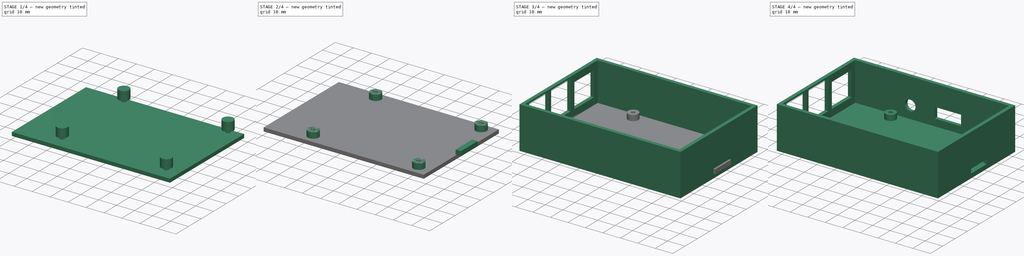
[diagram: build sequence overview — one tinted view per stage of 4, left to right]
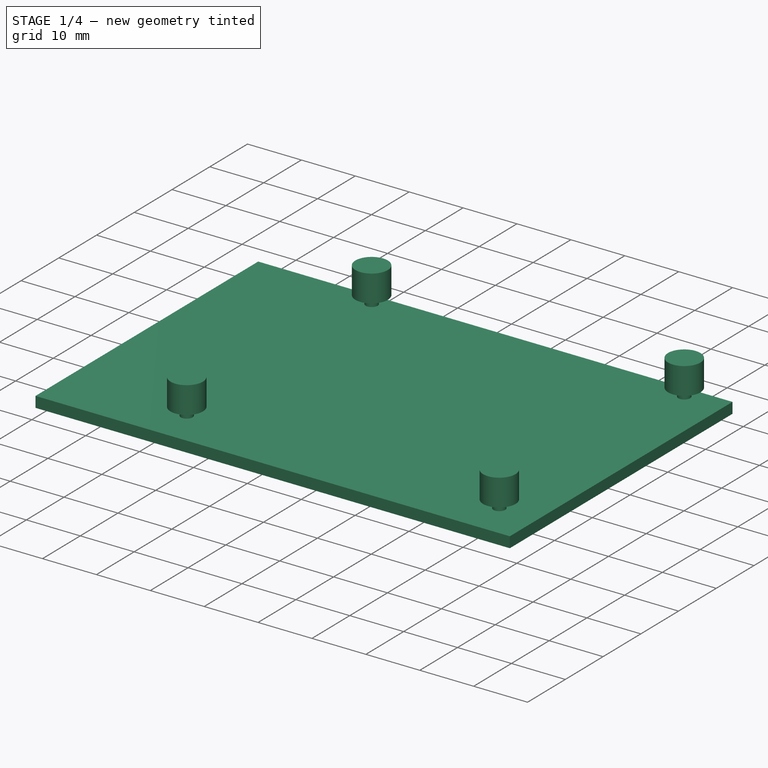
[diagram: stage 1 of 4 — iso view after this stage's code; geometry added in this stage tinted green]
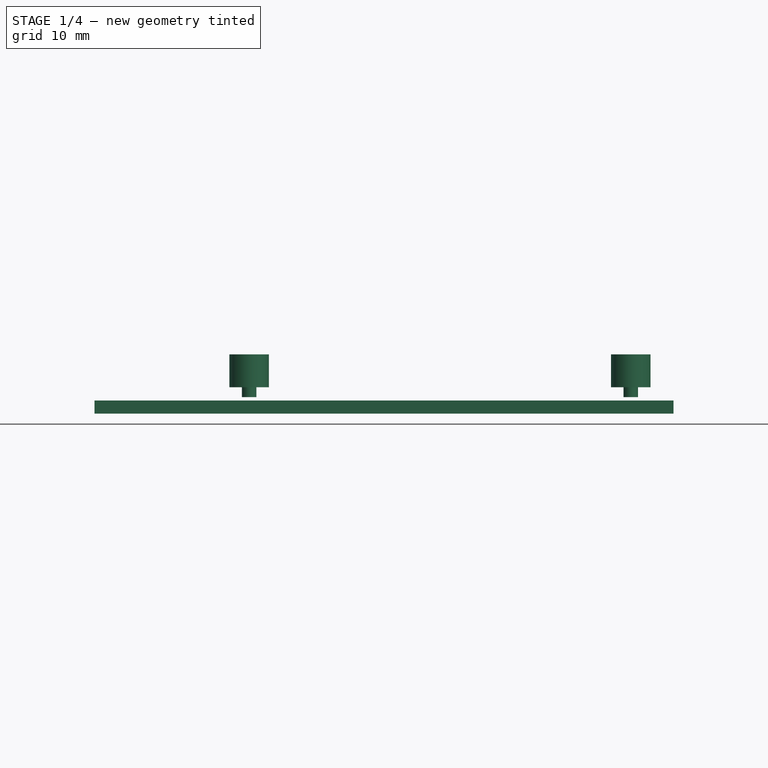
[diagram: stage 1 of 4 — front view after this stage's code; geometry added in this stage tinted green]
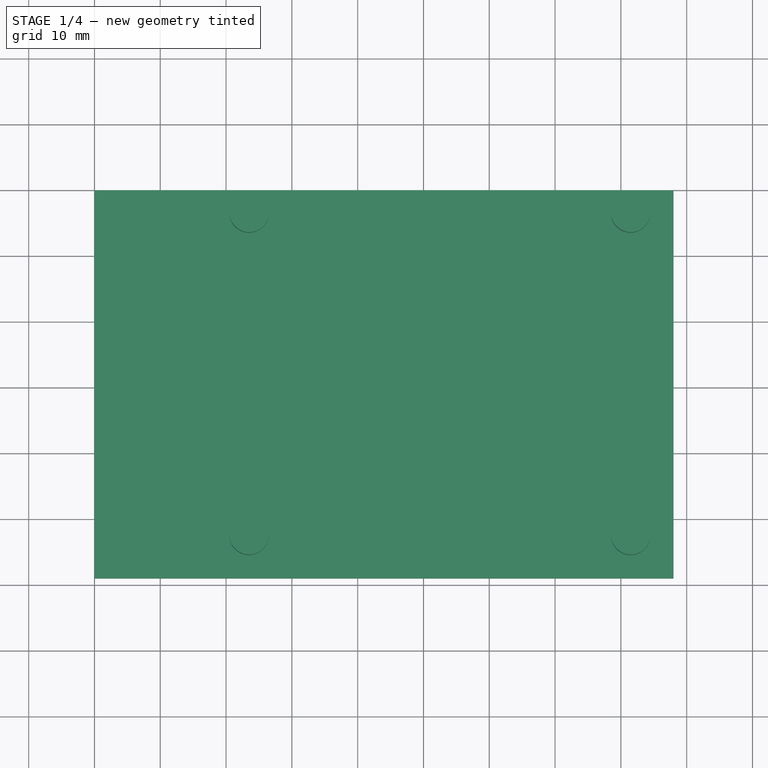
[diagram: stage 1 of 4 — top view after this stage's code; geometry added in this stage tinted green]
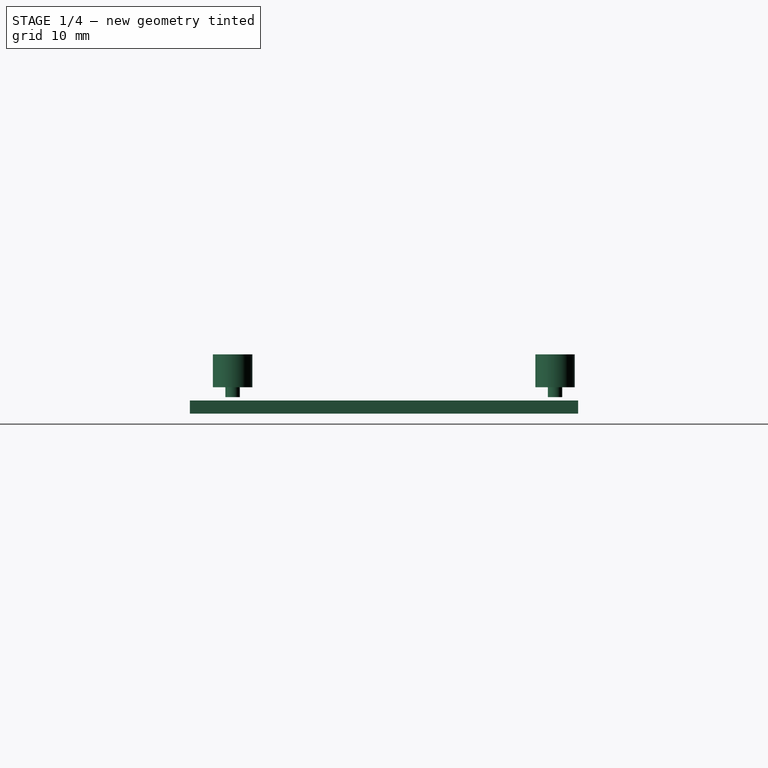
[diagram: stage 1 of 4 — right view after this stage's code; geometry added in this stage tinted green]
FCSTD DOCUMENT  (FreeCAD 0.15R4671 (Git))
Label: test02
License: All rights reserved
LicenseURL: http://en.wikipedia.org/wiki/All_rights_reserved
objects: Sketcher::SketchObject×7, PartDesign::Pad×7, Part::Cut×4, Part::MultiFuse×2
note: 27 computed .brp shape members not serialized (recipe doc carries the construction recipe); baked Part::Feature solids carry a one-line shape summary decoded from their .brp

FEATURE [Sketcher::SketchObject] Sketch  label="Raspberry Inner Holes"
  Placement = pos=(0,0,2.5) rot=(0,0,1;0rad)
  sketch-geometry (4):
    g0: Circle CenterX=23.5 CenterY=-3.5 CenterZ=0 NormalX=0 NormalY=0 NormalZ=1 Radius=1.1
    g1: Circle CenterX=23.5 CenterY=-52.5 CenterZ=0 NormalX=0 NormalY=0 NormalZ=1 Radius=1.1
    g2: Circle CenterX=81.5 CenterY=-3.5 CenterZ=0 NormalX=0 NormalY=0 NormalZ=1 Radius=1.1
    g3: Circle CenterX=81.5 CenterY=-52.5 CenterZ=0 NormalX=0 NormalY=0 NormalZ=1 Radius=1.1
  constraints (12):
    c: DistanceX(g0,g2) = 58
    c: DistanceY(g2,g0) = 0
    c: DistanceX(g0,g1) = 0
    c: DistanceX(g3,g2) = 0
    c: DistanceY(g3,g1) = 0
    c: Equal(g3,g2)
    c: Radius(g0) = 1.1
    c: Equal(g0,g2)
    c: Equal(g0,g1)
    c: DistanceY(g-1,g0) = -3.5
    c: DistanceY(g2,g3) = -49
    c: DistanceX(g-1,g0) = 23.5
FEATURE [PartDesign::Pad] Pad
  Length = 6.5
  Length2 = 100
  Placement = pos=(0,0,2.5) rot=(0,0,1;0rad)
  Sketch = -> Sketch
  Type = 0
FEATURE [Sketcher::SketchObject] Sketch001  label="Raspberry Outer Holes"
  Placement = pos=(0,0,4) rot=(0,0,1;0rad)
  sketch-geometry (4):
    g0: Circle CenterX=23.5 CenterY=-3.5 CenterZ=0 NormalX=0 NormalY=0 NormalZ=1 Radius=3
    g1: Circle CenterX=81.5 CenterY=-3.5 CenterZ=0 NormalX=0 NormalY=0 NormalZ=1 Radius=3
    g2: Circle CenterX=81.5 CenterY=-52.5 CenterZ=0 NormalX=0 NormalY=0 NormalZ=1 Radius=3
    g3: Circle CenterX=23.5 CenterY=-52.5 CenterZ=0 NormalX=0 NormalY=0 NormalZ=1 Radius=3
  constraints (12):
    c: DistanceX(g0,g1) = 58
    c: DistanceY(g0,g3) = -49
    c: DistanceY(g0,g1) = 0
    c: DistanceY(g3,g2) = 0
    c: DistanceX(g1,g2) = 0
    c: DistanceX(g0,g3) = 0
    c: Radius(g0) = 3
    c: Equal(g0,g3)
    c: Equal(g0,g2)
    c: Equal(g0,g1)
    c: DistanceX(g0) = 23.5
    c: DistanceY(g-1,g0) = -3.5
FEATURE [PartDesign::Pad] Pad001
  Length = 5
  Length2 = 100
  Placement = pos=(0,0,4) rot=(0,0,1;0rad)
  Sketch = -> Sketch001
  Type = 0
FEATURE [Sketcher::SketchObject] Sketch002
  sketch-geometry (4):
    g0: LineSegment StartX=0 StartY=0 StartZ=0 EndX=88 EndY=0 EndZ=0
    g1: LineSegment StartX=88 StartY=0 StartZ=0 EndX=88 EndY=-59 EndZ=0
    g2: LineSegment StartX=88 StartY=-59 StartZ=0 EndX=0 EndY=-59 EndZ=0
    g3: LineSegment StartX=0 StartY=-59 StartZ=0 EndX=0 EndY=0 EndZ=0
  constraints (11):
    c: Coincident(g0,g1)
    c: Coincident(g1,g2)
    c: Coincident(g2,g3)
    c: Coincident(g3,g0)
    c: Horizontal(g0)
    c: Horizontal(g2)
    c: Vertical(g1)
    c: Vertical(g3)
    c: Coincident(g0,g-1)
    c: Distance(g0) = 88
    c: Distance(g1) = 59
FEATURE [PartDesign::Pad] Pad002  label="Base"
  Length = 2
  Length2 = 100
  Sketch = -> Sketch002
  Type = 0
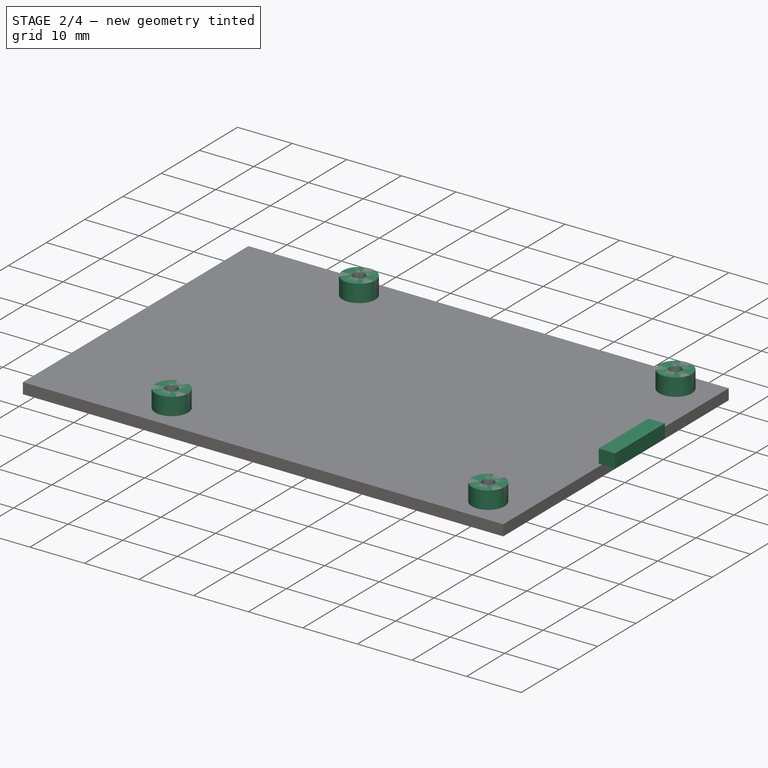
[diagram: stage 2 of 4 — iso view after this stage's code; geometry added in this stage tinted green]
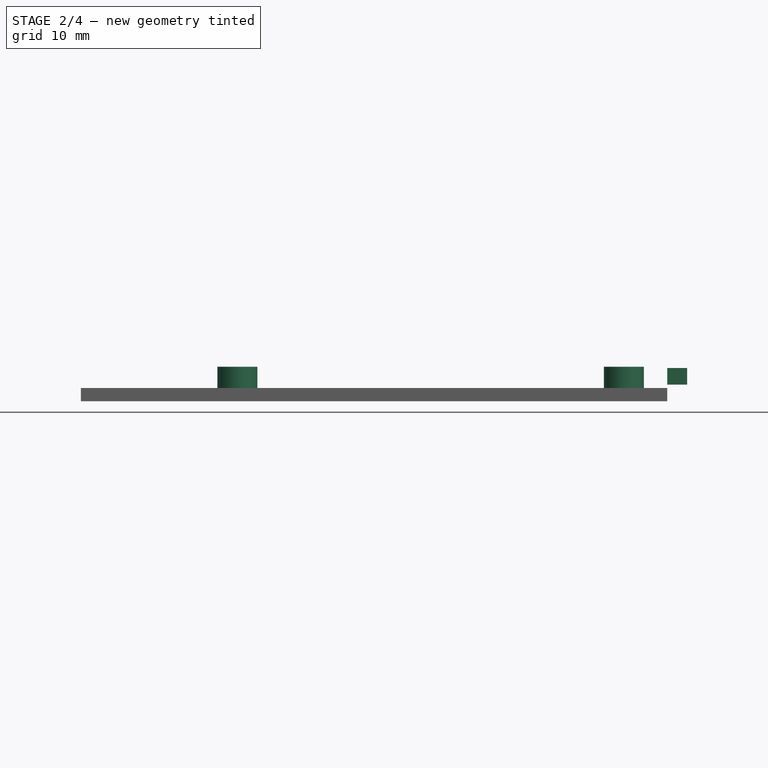
[diagram: stage 2 of 4 — front view after this stage's code; geometry added in this stage tinted green]
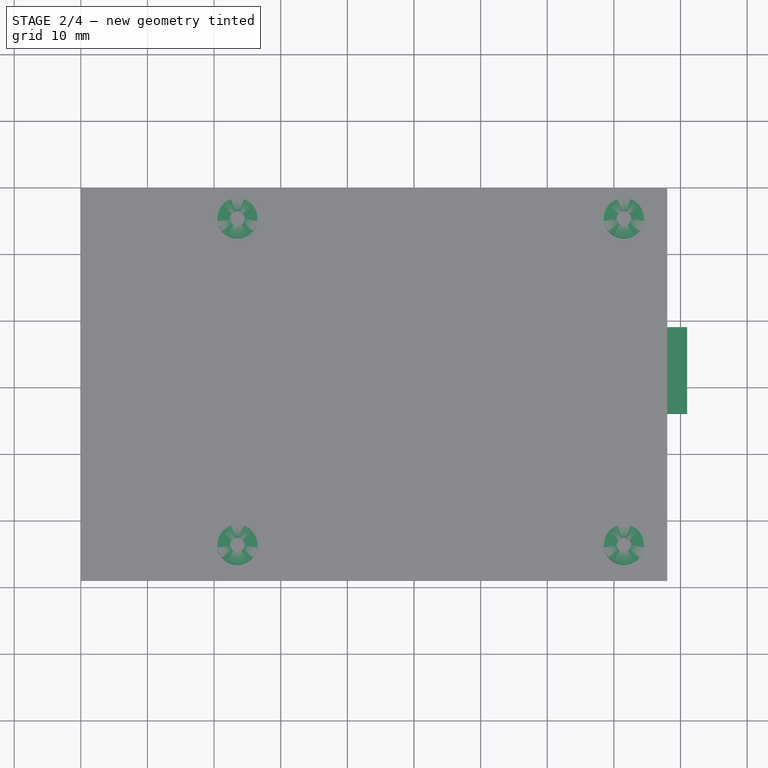
[diagram: stage 2 of 4 — top view after this stage's code; geometry added in this stage tinted green]
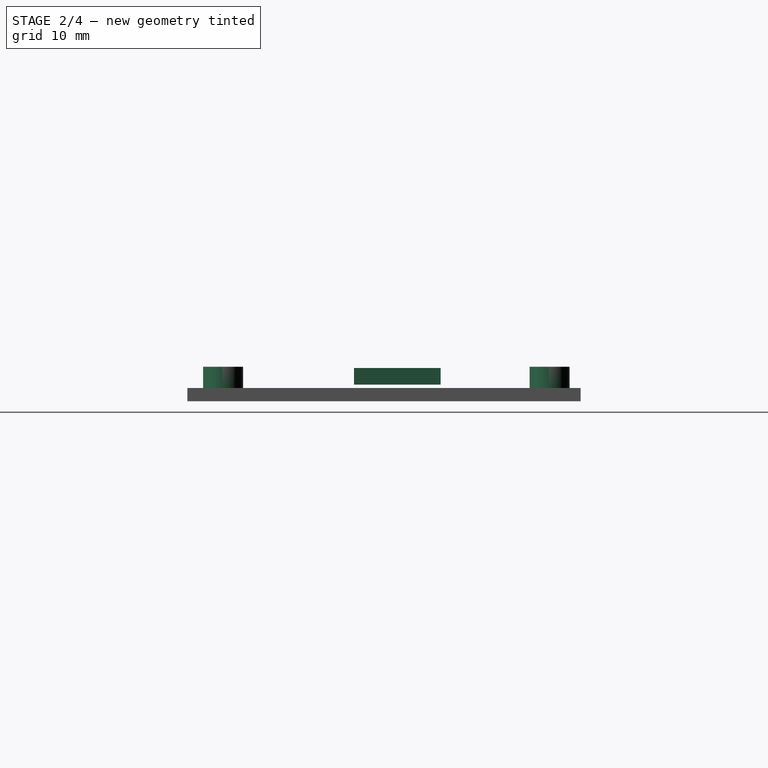
[diagram: stage 2 of 4 — right view after this stage's code; geometry added in this stage tinted green]
FEATURE [Part::Cut] Cut  label="Raspberry"
  Base = -> Pad001
  Placement = pos=(0.000477977,-1.1385,-3.80874) rot=(0,0,1;0rad)
  Tool = -> Pad
FEATURE [Sketcher::SketchObject] Sketch006
  Placement = pos=(88,0,0) rot=(0.57735,0.57735,0.57735;2.0944rad)
  sketch-geometry (4):
    g0: LineSegment StartX=-34 StartY=5 StartZ=0 EndX=-21 EndY=5 EndZ=0
    g1: LineSegment StartX=-21 StartY=5 StartZ=0 EndX=-21 EndY=2.5 EndZ=0
    g2: LineSegment StartX=-21 StartY=2.5 StartZ=0 EndX=-34 EndY=2.5 EndZ=0
    g3: LineSegment StartX=-34 StartY=2.5 StartZ=0 EndX=-34 EndY=5 EndZ=0
  constraints (12):
    c: Coincident(g0,g1)
    c: Coincident(g1,g2)
    c: Coincident(g2,g3)
    c: Coincident(g3,g0)
    c: Horizontal(g0)
    c: Horizontal(g2)
    c: Vertical(g1)
    c: Vertical(g3)
    c: Distance(g0) = 13
    c: DistanceX(g-1,g1) = -21
    c: DistanceY(g-1,g1) = 2.5
    c: DistanceY(g1) = -2.5
FEATURE [PartDesign::Pad] Pad006
  Length = 3
  Length2 = 100
  Placement = pos=(88,0,0) rot=(0.57735,0.57735,0.57735;2.0944rad)
  Sketch = -> Sketch006
  Type = 0
FEATURE [Part::MultiFuse] Fusion
  Shapes = -> [Cut,Pad002]
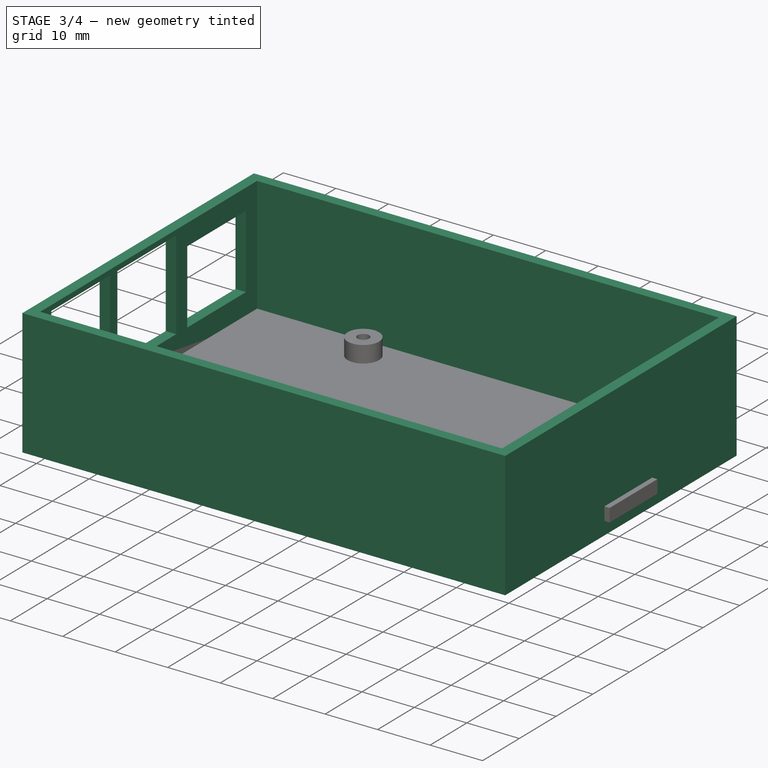
[diagram: stage 3 of 4 — iso view after this stage's code; geometry added in this stage tinted green]
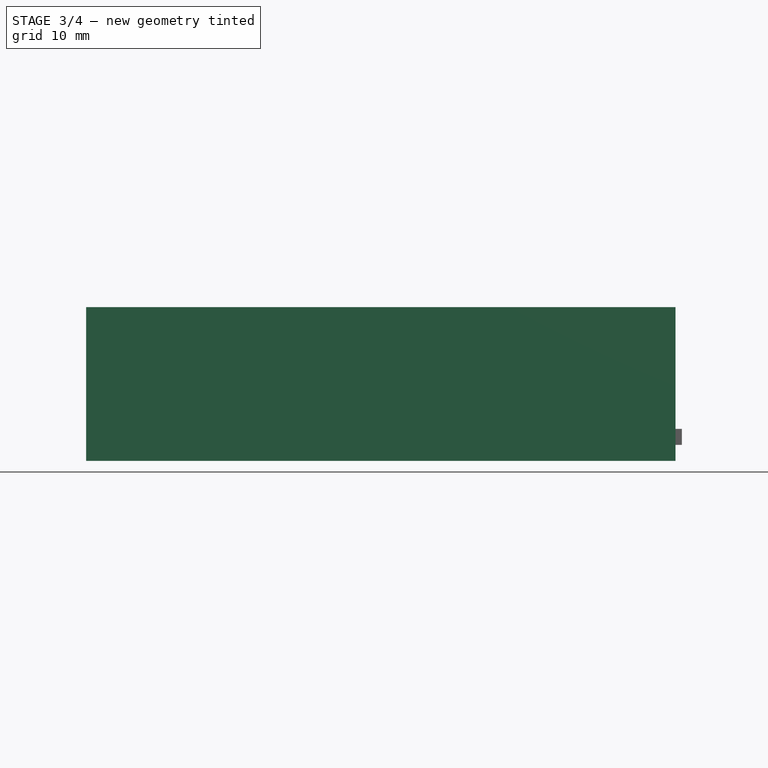
[diagram: stage 3 of 4 — front view after this stage's code; geometry added in this stage tinted green]
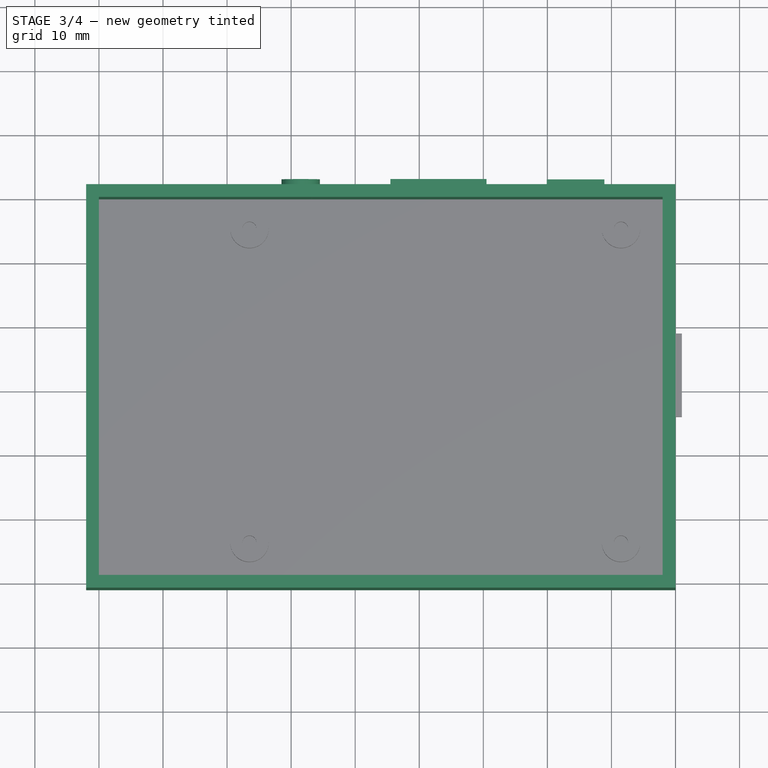
[diagram: stage 3 of 4 — top view after this stage's code; geometry added in this stage tinted green]
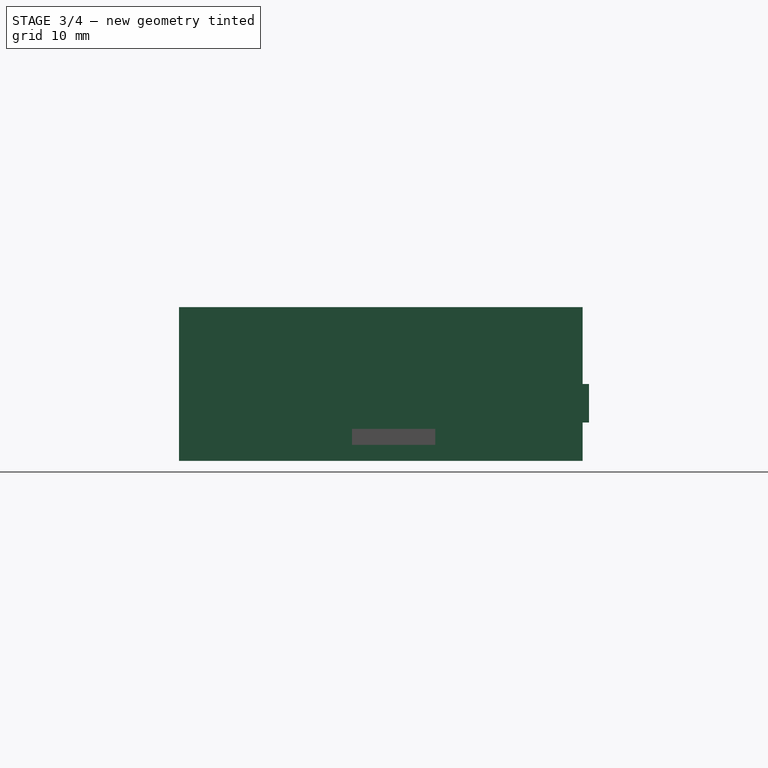
[diagram: stage 3 of 4 — right view after this stage's code; geometry added in this stage tinted green]
FEATURE [Sketcher::SketchObject] Sketch003
  sketch-geometry (8):
    g0: LineSegment StartX=0 StartY=0 StartZ=0 EndX=88 EndY=0 EndZ=0
    g1: LineSegment StartX=88 StartY=0 StartZ=0 EndX=88 EndY=-59 EndZ=0
    g2: LineSegment StartX=88 StartY=-59 StartZ=0 EndX=0 EndY=-59 EndZ=0
    g3: LineSegment StartX=0 StartY=-59 StartZ=0 EndX=0 EndY=0 EndZ=0
    g4: LineSegment StartX=-2 StartY=2 StartZ=0 EndX=90 EndY=2 EndZ=0
    g5: LineSegment StartX=90 StartY=2 StartZ=0 EndX=90 EndY=-61 EndZ=0
    g6: LineSegment StartX=90 StartY=-61 StartZ=0 EndX=-2 EndY=-61 EndZ=0
    g7: LineSegment StartX=-2 StartY=-61 StartZ=0 EndX=-2 EndY=2 EndZ=0
  constraints (23):
    c: Coincident(g0,g1)
    c: Coincident(g1,g2)
    c: Coincident(g2,g3)
    c: Coincident(g3,g0)
    c: Horizontal(g0)
    c: Horizontal(g2)
    c: Vertical(g1)
    c: Vertical(g3)
    c: Coincident(g0,g-1)
    c: Distance(g2) = 88
    c: Distance(g1) = 59
    c: Coincident(g4,g5)
    c: Coincident(g5,g6)
    c: Coincident(g6,g7)
    c: Coincident(g7,g4)
    c: Horizontal(g4)
    c: Horizontal(g6)
    c: Vertical(g5)
    c: Vertical(g7)
    c: DistanceX(g-1,g4) = -2
    c: DistanceY(g4,g0) = -2
    c: DistanceX(g5,g1) = -2
    c: DistanceY(g6,g2) = 2
FEATURE [PartDesign::Pad] Pad003  label="Paredes"
  Length = 24
  Length2 = 100
  Sketch = -> Sketch003
  Type = 0
FEATURE [Sketcher::SketchObject] Sketch004
  Placement = pos=(0,0,0) rot=(-0.57735,0.57735,0.57735;4.18879rad)
  sketch-geometry (12):
    g0: LineSegment StartX=3 StartY=20 StartZ=0 EndX=19 EndY=20 EndZ=0
    g1: LineSegment StartX=19 StartY=20 StartZ=0 EndX=19 EndY=6 EndZ=0
    g2: LineSegment StartX=19 StartY=6 StartZ=0 EndX=3 EndY=6 EndZ=0
    g3: LineSegment StartX=3 StartY=6 StartZ=0 EndX=3 EndY=20 EndZ=0
    g4: LineSegment StartX=22 StartY=23 StartZ=0 EndX=38 EndY=23 EndZ=0
    g5: LineSegment StartX=38 StartY=23 StartZ=0 EndX=38 EndY=6 EndZ=0
    g6: LineSegment StartX=38 StartY=6 StartZ=0 EndX=22 EndY=6 EndZ=0
    g7: LineSegment StartX=22 StartY=6 StartZ=0 EndX=22 EndY=23 EndZ=0
    g8: LineSegment StartX=40 StartY=23 StartZ=0 EndX=56 EndY=23 EndZ=0
    g9: LineSegment StartX=56 StartY=23 StartZ=0 EndX=56 EndY=6 EndZ=0
    g10: LineSegment StartX=56 StartY=6 StartZ=0 EndX=40 EndY=6 EndZ=0
    g11: LineSegment StartX=40 StartY=6 StartZ=0 EndX=40 EndY=23 EndZ=0
  constraints (36):
    c: Coincident(g0,g1)
    c: Coincident(g1,g2)
    c: Coincident(g2,g3)
    c: Coincident(g3,g0)
    c: Horizontal(g0)
    c: Horizontal(g2)
    c: Vertical(g1)
    c: Vertical(g3)
    c: Distance(g2) = 16
    c: Distance(g1) = 14
    c: DistanceY(g-1,g2) = 6
    c: DistanceX(g-1,g2) = 3
    c: Coincident(g4,g5)
    c: Coincident(g5,g6)
    c: Coincident(g6,g7)
    c: Coincident(g7,g4)
    c: Horizontal(g4)
    c: Horizontal(g6)
    c: Vertical(g5)
    c: Vertical(g7)
    c: DistanceX(g-1,g6) = 22
    c: Distance(g4) = 16
    c: DistanceY(g-1,g6) = 6
    c: Distance(g5) = 17
    c: Coincident(g8,g9)
    c: Coincident(g9,g10)
    c: Coincident(g10,g11)
    c: Coincident(g11,g8)
    c: Horizontal(g8)
    c: Horizontal(g10)
    c: Vertical(g9)
    c: Vertical(g11)
    c: DistanceY(g5,g10) = 0
    c: Equal(g9,g5)
    c: Equal(g8,g4)
    c: DistanceX(g10,g5) = -2
FEATURE [PartDesign::Pad] Pad004
  Length = 3
  Length2 = 100
  Placement = pos=(0,0,0) rot=(-0.57735,0.57735,0.57735;4.18879rad)
  Sketch = -> Sketch004
  Type = 0
FEATURE [Part::Cut] Cut001
  Base = -> Pad003
  Tool = -> Pad004
FEATURE [Sketcher::SketchObject] Sketch005
  Placement = pos=(0,0,0) rot=(0,0.707107,0.707107;3.14159rad)
  sketch-geometry (9):
    g0: Circle CenterX=-31.5 CenterY=9 CenterZ=0 NormalX=0 NormalY=0 NormalZ=1 Radius=3
    g1: LineSegment StartX=-60.5 StartY=12 StartZ=0 EndX=-45.5 EndY=12 EndZ=0
    g2: LineSegment StartX=-45.5 StartY=12 StartZ=0 EndX=-45.5 EndY=6 EndZ=0
    g3: LineSegment StartX=-45.5 StartY=6 StartZ=0 EndX=-60.5 EndY=6 EndZ=0
    g4: LineSegment StartX=-60.5 StartY=6 StartZ=0 EndX=-60.5 EndY=12 EndZ=0
    g5: LineSegment StartX=-78.9 StartY=9 StartZ=0 EndX=-69.9 EndY=9 EndZ=0
    g6: LineSegment StartX=-69.9 StartY=9 StartZ=0 EndX=-69.9 EndY=6 EndZ=0
    g7: LineSegment StartX=-69.9 StartY=6 StartZ=0 EndX=-78.9 EndY=6 EndZ=0
    g8: LineSegment StartX=-78.9 StartY=6 StartZ=0 EndX=-78.9 EndY=9 EndZ=0
  constraints (27):
    c: DistanceY(g-1,g0) = 9
    c: Radius(g0) = 3
    c: DistanceX(g-1,g0) = -31.5
    c: Coincident(g1,g2)
    c: Coincident(g2,g3)
    c: Coincident(g3,g4)
    c: Coincident(g4,g1)
    c: Horizontal(g1)
    c: Horizontal(g3)
    c: Vertical(g2)
    c: Vertical(g4)
    c: Distance(g1) = 15
    c: Distance(g2) = 6
    c: DistanceY(g-1,g2) = 6
    c: DistanceX(g-1,g2) = -45.5
    c: Coincident(g5,g6)
    c: Coincident(g6,g7)
    c: Coincident(g7,g8)
    c: Coincident(g8,g5)
    c: Horizontal(g5)
    c: Horizontal(g7)
    c: Vertical(g6)
    c: Vertical(g8)
    c: DistanceX(g-1,g6) = -69.9
    c: Distance(g7) = 9
    c: DistanceY(g-1,g7) = 6
    c: DistanceY(g6) = -3
FEATURE [PartDesign::Pad] Pad005
  Length = 3
  Length2 = 100
  Placement = pos=(0,0,0) rot=(0,0.707107,0.707107;3.14159rad)
  Sketch = -> Sketch005
  Type = 0
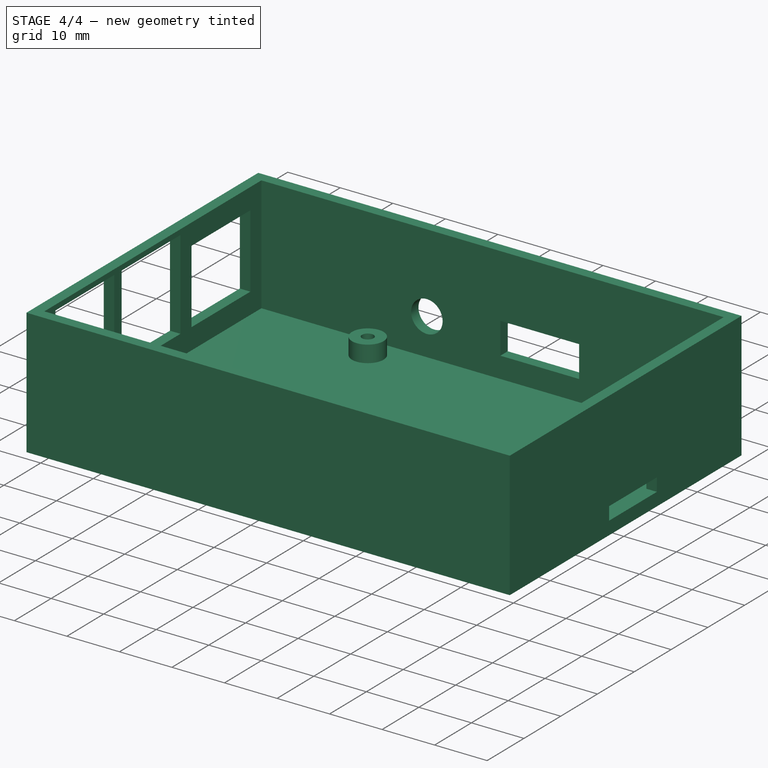
[diagram: stage 4 of 4 — iso view after this stage's code; geometry added in this stage tinted green]
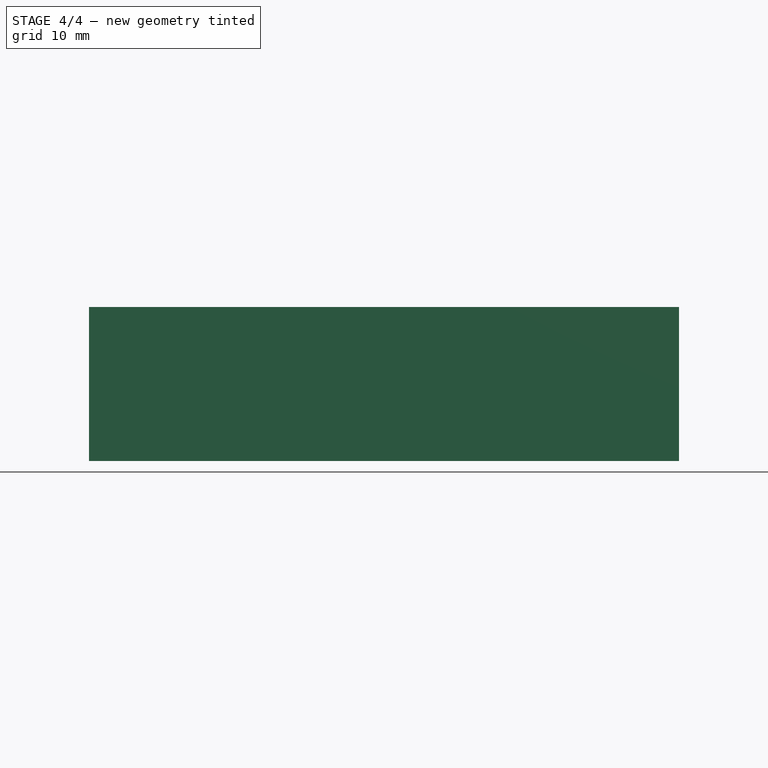
[diagram: stage 4 of 4 — front view after this stage's code; geometry added in this stage tinted green]
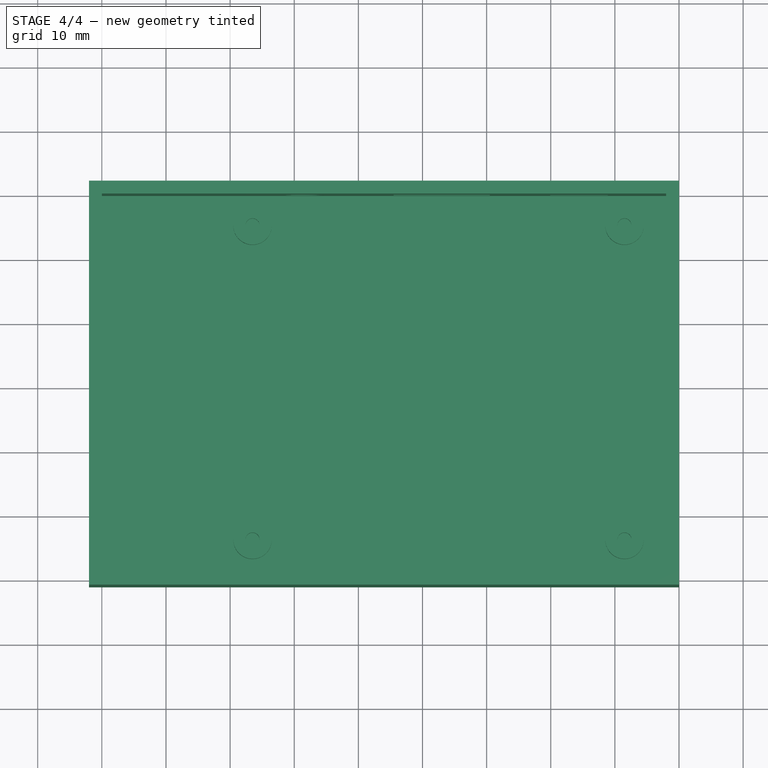
[diagram: stage 4 of 4 — top view after this stage's code; geometry added in this stage tinted green]
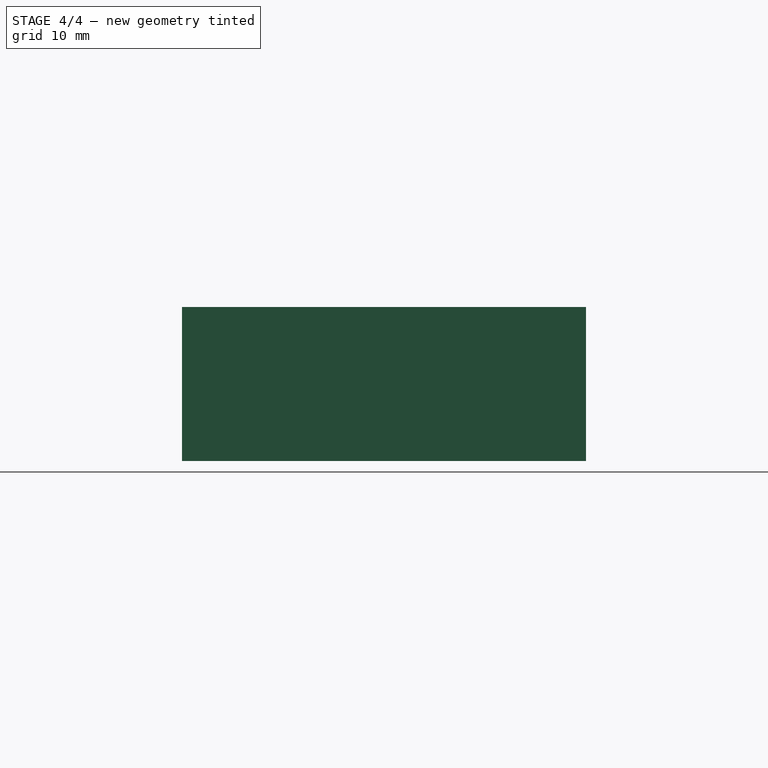
[diagram: stage 4 of 4 — right view after this stage's code; geometry added in this stage tinted green]
FEATURE [Part::Cut] Cut002
  Base = -> Cut001
  Tool = -> Pad005
FEATURE [Part::Cut] Cut003
  Base = -> Cut002
  Tool = -> Pad006
FEATURE [Part::MultiFuse] Fusion001
  Shapes = -> [Fusion,Cut003]
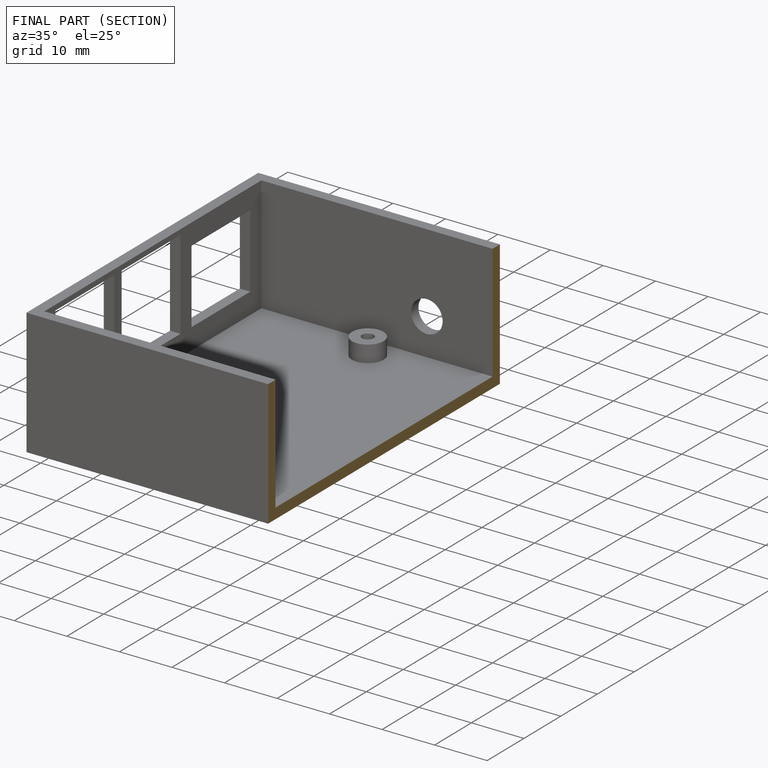
[diagram: finished part — half-section view (interior)]
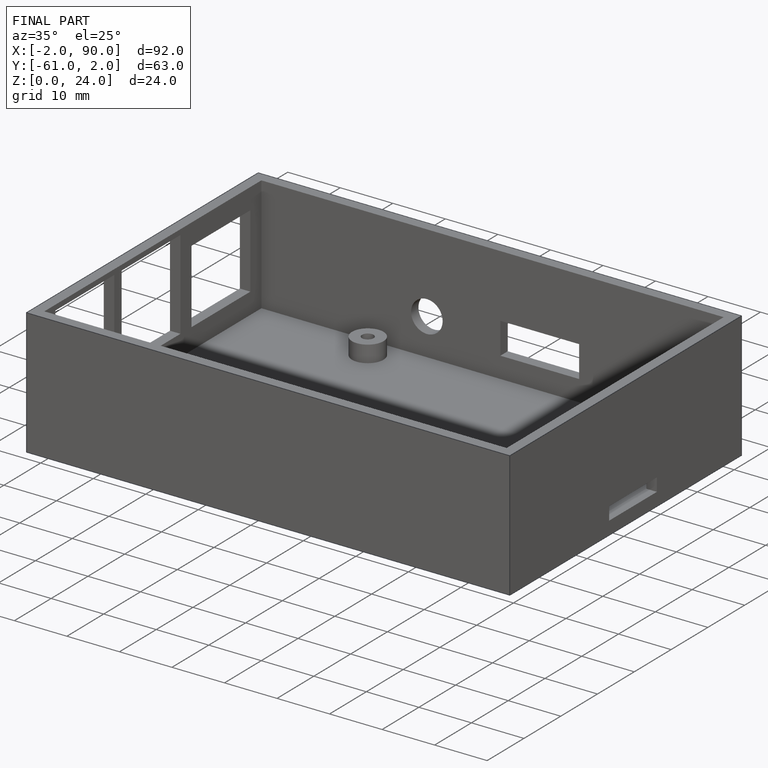
[diagram: finished part — iso view with bounding-box wireframe]
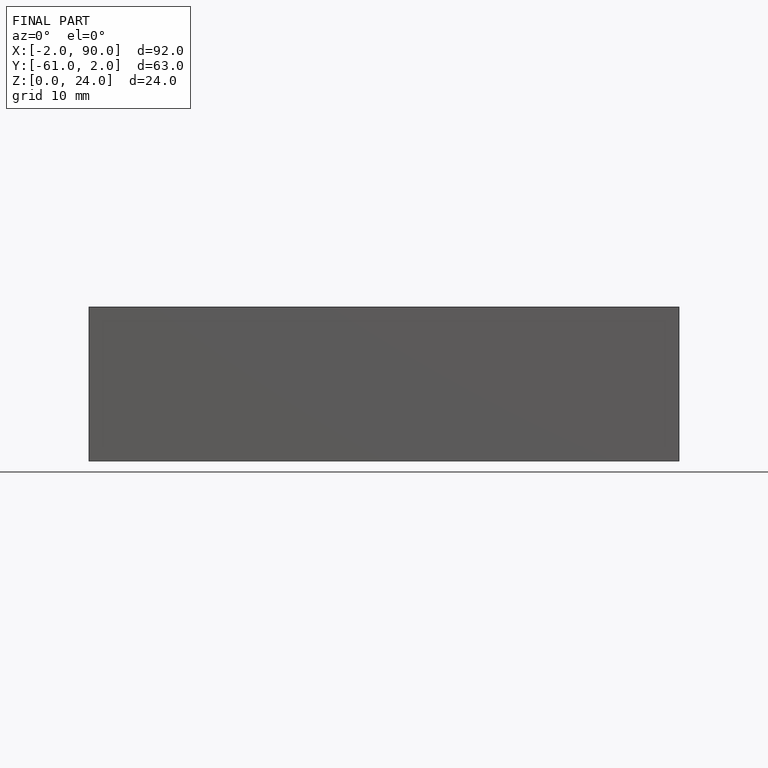
[diagram: finished part — front view with bounding-box wireframe]
